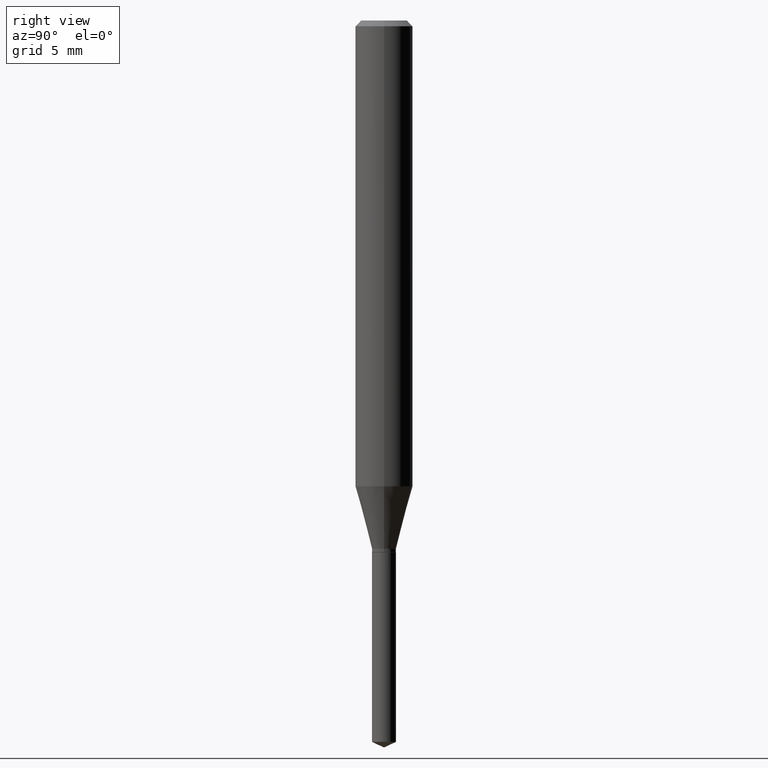
[diagram: clean part render]
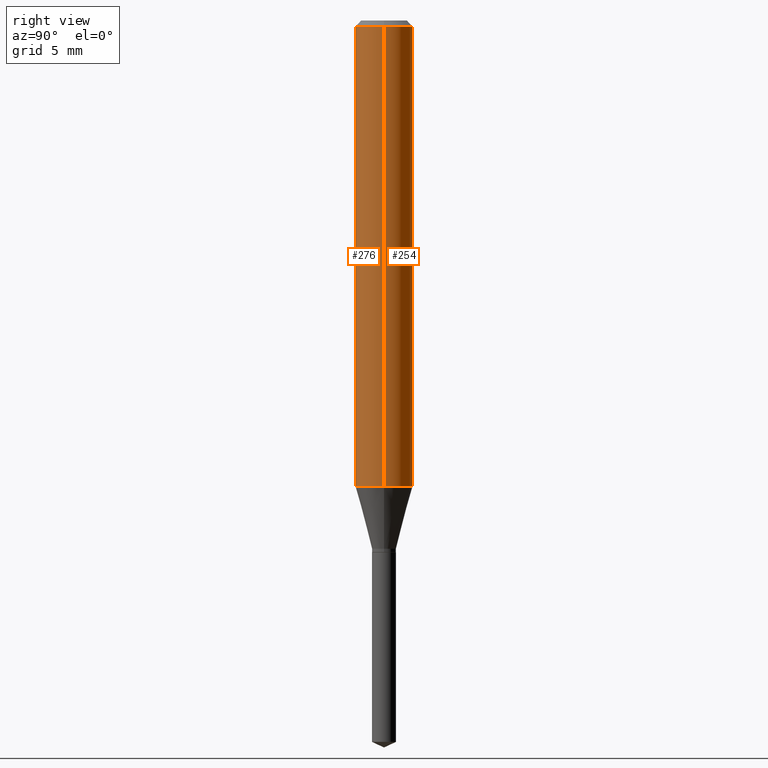
[diagram: same view with one multi-face feature highlighted, each face labeled with its STEP entity id]
A machine part, right view. The highlighted faces form ONE feature: a constant-radius fillet chain: 2 tangent blend faces with common blend radius 1.4999 mm. The faces share edges in the B-rep.
Their STEP definitions:
[1] entity #254 (Cylinder):
#36 = CARTESIAN_POINT ( 'NONE',  ( 0.05905000000000011628, -3.759036520477947429E-15, -0.9585308496792520616 ) ) ;
#62 = AXIS2_PLACEMENT_3D ( 'NONE', #488, #308, #121 ) ;
#84 = VECTOR ( 'NONE', #472, 39.37007874015748143 ) ;
#95 = FACE_OUTER_BOUND ( 'NONE', #477, .T. ) ;
#100 = VERTEX_POINT ( 'NONE', #340 ) ;
#109 = VERTEX_POINT ( 'NONE', #157 ) ;
#111 = EDGE_CURVE ( 'NONE', #163, #109, #312, .T. ) ;
#121 = DIRECTION ( 'NONE',  ( 1.000000000000000000, -6.982962677686266711E-15, 0.000000000000000000 ) ) ;
#135 = CARTESIAN_POINT ( 'NONE',  ( 0.05904999999999999832, -4.535783407291118600E-16, -0.01181000000000007738 ) ) ;
#141 = LINE ( 'NONE', #175, #84 ) ;
#157 = CARTESIAN_POINT ( 'NONE',  ( -0.05905000000000011628, -2.927117088894233016E-15, -0.9585308496792520616 ) ) ;
#163 = VERTEX_POINT ( 'NONE', #36 ) ;
#167 = CIRCLE ( 'NONE', #378, 0.05904999999999999832 ) ;
#171 = VERTEX_POINT ( 'NONE', #135 ) ;
#175 = CARTESIAN_POINT ( 'NONE',  ( 0.05905000000000006077, -4.123439461173744764E-16, 2.879382386107503023E-30 ) ) ;
#185 = EDGE_CURVE ( 'NONE', #171, #100, #167, .T. ) ;
#203 = EDGE_CURVE ( 'NONE', #163, #171, #141, .T. ) ;
#211 = VECTOR ( 'NONE', #320, 39.37007874015748143 ) ;
#213 = CARTESIAN_POINT ( 'NONE',  ( 0.000000000000000000, 0.000000000000000000, 0.000000000000000000 ) ) ;
#234 = AXIS2_PLACEMENT_3D ( 'NONE', #213, #245, #350 ) ;
#240 = ORIENTED_EDGE ( 'NONE', *, *, #185, .F. ) ;
#244 = EDGE_CURVE ( 'NONE', #109, #100, #283, .T. ) ;
#245 = DIRECTION ( 'NONE',  ( -2.445468806185136597E-29, 3.491481338843145583E-15, 1.000000000000000000 ) ) ;
#254 = ADVANCED_FACE ( 'NONE', ( #95 ), #399, .T. ) ;
#255 = ORIENTED_EDGE ( 'NONE', *, *, #244, .T. ) ;
#283 = LINE ( 'NONE', #290, #211 ) ;
#284 = CARTESIAN_POINT ( 'NONE',  ( 2.888098660104665518E-31, -4.123439461173782112E-17, -0.01181000000000007738 ) ) ;
#290 = CARTESIAN_POINT ( 'NONE',  ( -0.05905000000000006077, 4.195754854663395916E-16, -2.904631170795524694E-30 ) ) ;
#308 = DIRECTION ( 'NONE',  ( -2.445468806185136597E-29, 3.491481338843145583E-15, 1.000000000000000000 ) ) ;
#312 = CIRCLE ( 'NONE', #62, 0.05905000000000011628 ) ;
#320 = DIRECTION ( 'NONE',  ( -2.445468806185136877E-29, 3.491481338843145188E-15, 1.000000000000000000 ) ) ;
#322 = DIRECTION ( 'NONE',  ( 1.000000000000000000, -6.982962677686266711E-15, 0.000000000000000000 ) ) ;
#340 = CARTESIAN_POINT ( 'NONE',  ( -0.05904999999999999832, -1.274387999019814837E-15, -0.01181000000000007738 ) ) ;
#350 = DIRECTION ( 'NONE',  ( 1.000000000000000000, -6.982962677686266711E-15, 4.876176775795935793E-29 ) ) ;
#378 = AXIS2_PLACEMENT_3D ( 'NONE', #284, #473, #322 ) ;
#399 = CYLINDRICAL_SURFACE ( 'NONE', #234, 0.05905000000000006077 ) ;
#405 = ORIENTED_EDGE ( 'NONE', *, *, #111, .T. ) ;
#447 = ORIENTED_EDGE ( 'NONE', *, *, #203, .F. ) ;
#472 = DIRECTION ( 'NONE',  ( -2.445468806185136877E-29, 3.491481338843145188E-15, 1.000000000000000000 ) ) ;
#473 = DIRECTION ( 'NONE',  ( -2.445468806185136597E-29, 3.491481338843145583E-15, 1.000000000000000000 ) ) ;
#477 = EDGE_LOOP ( 'NONE', ( #405, #255, #240, #447 ) ) ;
#488 = CARTESIAN_POINT ( 'NONE',  ( 2.344057292656745100E-29, -3.346692574360572903E-15, -0.9585308496792520616 ) ) ;
[2] entity #276 (Cylinder):
#27 = ORIENTED_EDGE ( 'NONE', *, *, #244, .F. ) ;
#36 = CARTESIAN_POINT ( 'NONE',  ( 0.05905000000000011628, -3.759036520477947429E-15, -0.9585308496792520616 ) ) ;
#52 = AXIS2_PLACEMENT_3D ( 'NONE', #404, #57, #209 ) ;
#56 = EDGE_CURVE ( 'NONE', #109, #163, #434, .T. ) ;
#57 = DIRECTION ( 'NONE',  ( -2.445468806185136597E-29, 3.491481338843145583E-15, 1.000000000000000000 ) ) ;
#69 = EDGE_CURVE ( 'NONE', #100, #171, #177, .T. ) ;
#72 = DIRECTION ( 'NONE',  ( 1.000000000000000000, -6.982962677686266711E-15, 0.000000000000000000 ) ) ;
#84 = VECTOR ( 'NONE', #472, 39.37007874015748143 ) ;
#100 = VERTEX_POINT ( 'NONE', #340 ) ;
#109 = VERTEX_POINT ( 'NONE', #157 ) ;
#125 = DIRECTION ( 'NONE',  ( -2.445468806185136597E-29, 3.491481338843145583E-15, 1.000000000000000000 ) ) ;
#132 = AXIS2_PLACEMENT_3D ( 'NONE', #376, #196, #194 ) ;
#135 = CARTESIAN_POINT ( 'NONE',  ( 0.05904999999999999832, -4.535783407291118600E-16, -0.01181000000000007738 ) ) ;
#141 = LINE ( 'NONE', #175, #84 ) ;
#157 = CARTESIAN_POINT ( 'NONE',  ( -0.05905000000000011628, -2.927117088894233016E-15, -0.9585308496792520616 ) ) ;
#163 = VERTEX_POINT ( 'NONE', #36 ) ;
#171 = VERTEX_POINT ( 'NONE', #135 ) ;
#175 = CARTESIAN_POINT ( 'NONE',  ( 0.05905000000000006077, -4.123439461173744764E-16, 2.879382386107503023E-30 ) ) ;
#177 = CIRCLE ( 'NONE', #132, 0.05904999999999999832 ) ;
#194 = DIRECTION ( 'NONE',  ( 1.000000000000000000, -6.982962677686266711E-15, 0.000000000000000000 ) ) ;
#196 = DIRECTION ( 'NONE',  ( -2.445468806185136597E-29, 3.491481338843145583E-15, 1.000000000000000000 ) ) ;
#203 = EDGE_CURVE ( 'NONE', #163, #171, #141, .T. ) ;
#209 = DIRECTION ( 'NONE',  ( 1.000000000000000000, -6.982962677686266711E-15, 4.876176775795935793E-29 ) ) ;
#211 = VECTOR ( 'NONE', #320, 39.37007874015748143 ) ;
#223 = ORIENTED_EDGE ( 'NONE', *, *, #56, .T. ) ;
#244 = EDGE_CURVE ( 'NONE', #109, #100, #283, .T. ) ;
#251 = CYLINDRICAL_SURFACE ( 'NONE', #52, 0.05905000000000006077 ) ;
#274 = AXIS2_PLACEMENT_3D ( 'NONE', #428, #125, #72 ) ;
#276 = ADVANCED_FACE ( 'NONE', ( #444 ), #251, .T. ) ;
#280 = ORIENTED_EDGE ( 'NONE', *, *, #203, .T. ) ;
#283 = LINE ( 'NONE', #290, #211 ) ;
#290 = CARTESIAN_POINT ( 'NONE',  ( -0.05905000000000006077, 4.195754854663395916E-16, -2.904631170795524694E-30 ) ) ;
#314 = EDGE_LOOP ( 'NONE', ( #27, #223, #280, #445 ) ) ;
#320 = DIRECTION ( 'NONE',  ( -2.445468806185136877E-29, 3.491481338843145188E-15, 1.000000000000000000 ) ) ;
#340 = CARTESIAN_POINT ( 'NONE',  ( -0.05904999999999999832, -1.274387999019814837E-15, -0.01181000000000007738 ) ) ;
#376 = CARTESIAN_POINT ( 'NONE',  ( 2.888098660104665518E-31, -4.123439461173782112E-17, -0.01181000000000007738 ) ) ;
#404 = CARTESIAN_POINT ( 'NONE',  ( 0.000000000000000000, 0.000000000000000000, 0.000000000000000000 ) ) ;
#428 = CARTESIAN_POINT ( 'NONE',  ( 2.344057292656745100E-29, -3.346692574360572903E-15, -0.9585308496792520616 ) ) ;
#434 = CIRCLE ( 'NONE', #274, 0.05905000000000011628 ) ;
#444 = FACE_OUTER_BOUND ( 'NONE', #314, .T. ) ;
#445 = ORIENTED_EDGE ( 'NONE', *, *, #69, .F. ) ;
#472 = DIRECTION ( 'NONE',  ( -2.445468806185136877E-29, 3.491481338843145188E-15, 1.000000000000000000 ) ) ;